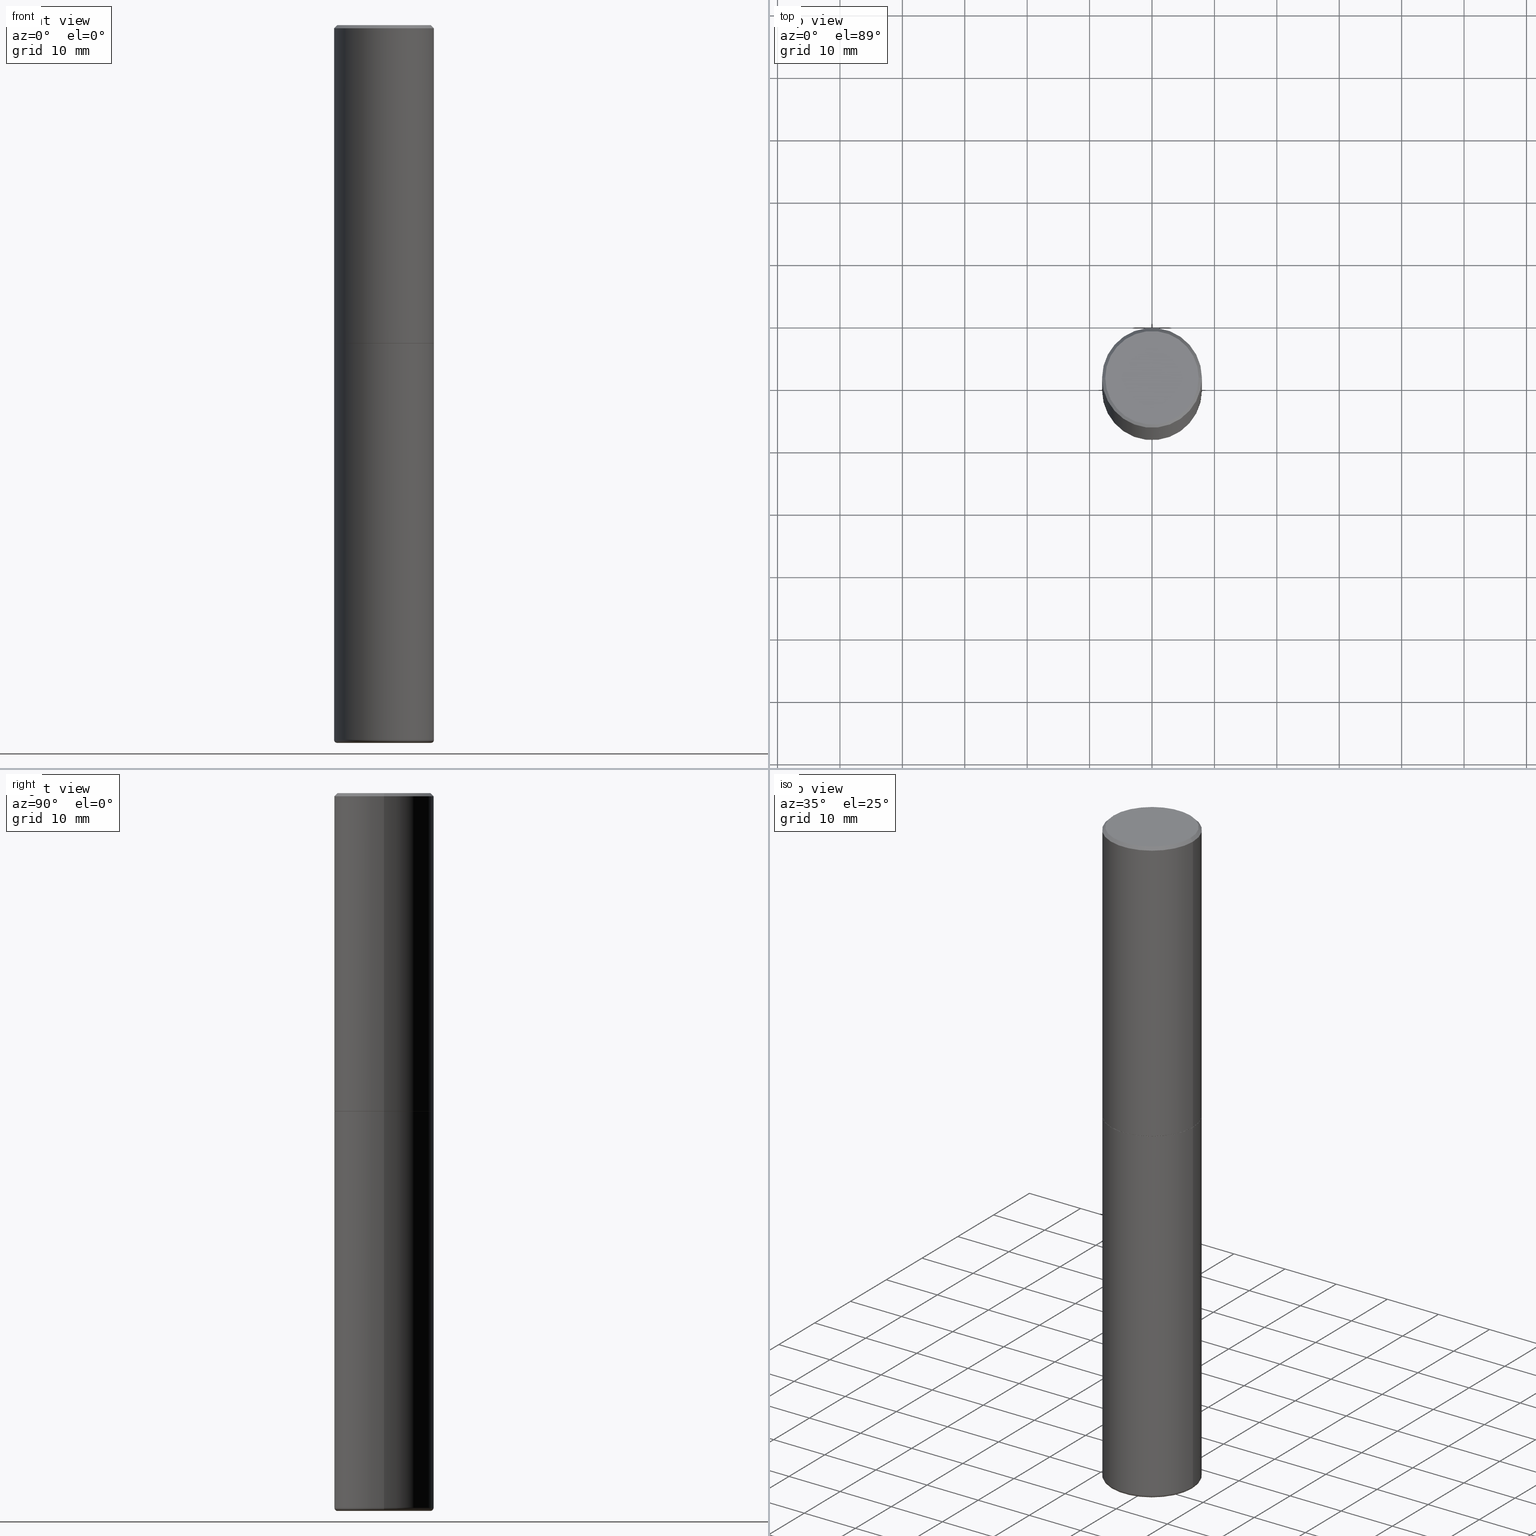
[diagram: canonical four-view strip — front | top / right | iso, engineering-drawing reading convention]
A machine part, canonical four-view strip (front | top / right | iso — engineering-drawing reading convention). The complete STEP part file that produces these views, byte-faithful:
ISO-10303-21;
HEADER;
FILE_DESCRIPTION (( 'STEP AP203' ),
    '1' );
FILE_NAME ('74776.STEP',
    '2024-05-02T19:17:38',
    ( '' ),
    ( '' ),
    'SwSTEP 2.0',
    'SolidWorks 2023',
    '' );
FILE_SCHEMA (( 'CONFIG_CONTROL_DESIGN' ));
ENDSEC;

DATA;
#1 = FACE_OUTER_BOUND ( 'NONE', #267, .T. ) ;
#2 = APPLICATION_PROTOCOL_DEFINITION ( 'international standard', 'config_control_design', 1994, #95 ) ;
#3 = FACE_OUTER_BOUND ( 'NONE', #375, .T. ) ;
#4 = EDGE_CURVE ( 'NONE', #141, #298, #44, .T. ) ;
#5 = DIRECTION ( 'NONE',  ( 1.000000000000000000, -6.982962677686266711E-15, 0.000000000000000000 ) ) ;
#6 = DIRECTION ( 'NONE',  ( -2.445468806185136597E-29, 3.491481338843145583E-15, 1.000000000000000000 ) ) ;
#7 = FACE_OUTER_BOUND ( 'NONE', #270, .T. ) ;
#8 = VERTEX_POINT ( 'NONE', #82 ) ;
#9 = COORDINATED_UNIVERSAL_TIME_OFFSET ( 5, 0, .BEHIND. ) ;
#10 = VERTEX_POINT ( 'NONE', #330 ) ;
#11 = DATE_AND_TIME ( #297, #372 ) ;
#12 = VERTEX_POINT ( 'NONE', #257 ) ;
#13 = AXIS2_PLACEMENT_3D ( 'NONE', #92, #113, #98 ) ;
#14 = EDGE_CURVE ( 'NONE', #414, #141, #396, .T. ) ;
#15 = ORIENTED_EDGE ( 'NONE', *, *, #386, .F. ) ;
#16 = SECURITY_CLASSIFICATION ( '', '', #366 ) ;
#17 = ORIENTED_EDGE ( 'NONE', *, *, #329, .F. ) ;
#18 = DIRECTION ( 'NONE',  ( 1.000000000000000000, -6.982962677686269866E-15, 0.000000000000000000 ) ) ;
#19 = VERTEX_POINT ( 'NONE', #351 ) ;
#20 = DIRECTION ( 'NONE',  ( -1.000000000000000000, 7.105427357600976615E-15, 0.000000000000000000 ) ) ;
#21 = EDGE_CURVE ( 'NONE', #186, #215, #148, .T. ) ;
#22 = EDGE_LOOP ( 'NONE', ( #235, #242, #90, #343 ) ) ;
#23 = AXIS2_PLACEMENT_3D ( 'NONE', #312, #271, #20 ) ;
#24 = AXIS2_PLACEMENT_3D ( 'NONE', #128, #103, #5 ) ;
#25 = DIRECTION ( 'NONE',  ( 1.000000000000000000, -6.982962677686265922E-15, 4.876176775795935232E-29 ) ) ;
#26 = CARTESIAN_POINT ( 'NONE',  ( -0.3149500000000001743, 2.237854346276436774E-15, -1.549218606675783237E-29 ) ) ;
#27 = EDGE_LOOP ( 'NONE', ( #234, #153, #119, #311 ) ) ;
#28 = DIRECTION ( 'NONE',  ( 0.7071067811866199593, -2.468850131083015945E-15, 0.7071067811864750752 ) ) ;
#29 = EDGE_CURVE ( 'NONE', #414, #19, #212, .T. ) ;
#30 = CARTESIAN_POINT ( 'NONE',  ( 4.890937612370289799E-31, -6.982962677686315028E-17, -0.02000000000000006981 ) ) ;
#31 = AXIS2_PLACEMENT_3D ( 'NONE', #315, #282, #319 ) ;
#32 = CYLINDRICAL_SURFACE ( 'NONE', #295, 0.3149500000000001743 ) ;
#33 = DIRECTION ( 'NONE',  ( 1.000000000000000000, -6.982962677686273021E-15, 0.000000000000000000 ) ) ;
#34 = DIRECTION ( 'NONE',  ( 2.438088387897960049E-29, -3.491481338843145188E-15, -1.000000000000000000 ) ) ;
#35 = DIRECTION ( 'NONE',  ( 2.438088387897960049E-29, -3.491481338843145188E-15, -1.000000000000000000 ) ) ;
#36 = EDGE_CURVE ( 'NONE', #150, #412, #185, .T. ) ;
#37 = MECHANICAL_CONTEXT ( 'NONE', #95, 'mechanical' ) ;
#38 = CIRCLE ( 'NONE', #353, 0.3139500000000000068 ) ;
#39 = CC_DESIGN_APPROVAL ( #77, ( #16 ) ) ;
#40 =( NAMED_UNIT ( * ) PLANE_ANGLE_UNIT ( ) SI_UNIT ( $, .RADIAN. ) );
#41 = COORDINATED_UNIVERSAL_TIME_OFFSET ( 5, 0, .BEHIND. ) ;
#42 = EDGE_CURVE ( 'NONE', #60, #12, #52, .T. ) ;
#43 = APPROVAL_DATE_TIME ( #395, #143 ) ;
#44 = CIRCLE ( 'NONE', #327, 0.3149500000000002853 ) ;
#45 = TOROIDAL_SURFACE ( 'NONE', #233, 0.2952500000000000124, 0.01969999999999934998 ) ;
#46 = PERSON_AND_ORGANIZATION ( #316, #157 ) ;
#47 = PERSON_AND_ORGANIZATION_ROLE ( 'design_owner' ) ;
#48 = PRODUCT_DEFINITION_SHAPE ( 'NONE', 'NONE',  #263 ) ;
#49 = CC_DESIGN_PERSON_AND_ORGANIZATION_ASSIGNMENT ( #51, #84, ( #241 ) ) ;
#50 = ORIENTED_EDGE ( 'NONE', *, *, #229, .F. ) ;
#51 = PERSON_AND_ORGANIZATION ( #316, #157 ) ;
#52 = CIRCLE ( 'NONE', #31, 0.3149499999999999522 ) ;
#53 = ORIENTED_EDGE ( 'NONE', *, *, #317, .T. ) ;
#54 = AXIS2_PLACEMENT_3D ( 'NONE', #131, #35, #324 ) ;
#55 = CARTESIAN_POINT ( 'NONE',  ( 0.3149499999999999522, -2.230543471175006661E-15, -0.02000000000000006981 ) ) ;
#56 = EDGE_LOOP ( 'NONE', ( #210, #175, #66, #299 ) ) ;
#57 = CC_DESIGN_DATE_AND_TIME_ASSIGNMENT ( #264, #207, ( #16 ) ) ;
#58 = DIRECTION ( 'NONE',  ( -2.445468806185136597E-29, 3.491481338843145583E-15, 1.000000000000000000 ) ) ;
#59 = PRODUCT ( '74776', '74776', '', ( #37 ) ) ;
#60 = VERTEX_POINT ( 'NONE', #161 ) ;
#61 = MANIFOLD_SOLID_BREP ( 'Body-Move/Copy2[1]', #301 ) ;
#62 = CARTESIAN_POINT ( 'NONE',  ( 0.3149500000000002853, -9.206337994261599363E-15, -2.006899999999999906 ) ) ;
#63 = EDGE_LOOP ( 'NONE', ( #50, #303, #308, #400 ) ) ;
#64 = VECTOR ( 'NONE', #269, 39.37007874015748143 ) ;
#65 = CYLINDRICAL_SURFACE ( 'NONE', #199, 0.3149500000000000077 ) ;
#66 = ORIENTED_EDGE ( 'NONE', *, *, #42, .F. ) ;
#67 = CYLINDRICAL_SURFACE ( 'NONE', #206, 0.3149500000000001743 ) ;
#68 = FACE_OUTER_BOUND ( 'NONE', #115, .T. ) ;
#69 = DIRECTION ( 'NONE',  ( -2.445468806185136597E-29, 3.491481338843145583E-15, 1.000000000000000000 ) ) ;
#70 = EDGE_CURVE ( 'NONE', #19, #414, #38, .T. ) ;
#71 = DIRECTION ( 'NONE',  ( 1.000000000000000000, -6.982962677686260400E-15, 4.883557194083110659E-29 ) ) ;
#72 = DIRECTION ( 'NONE',  ( 1.000000000000000000, 0.000000000000000000, 0.000000000000000000 ) ) ;
#73 = DIRECTION ( 'NONE',  ( -1.000000000000000000, 6.982962677686265922E-15, -4.876176775795935793E-29 ) ) ;
#74 = AXIS2_PLACEMENT_3D ( 'NONE', #99, #416, #18 ) ;
#75 = CYLINDRICAL_SURFACE ( 'NONE', #389, 0.3149500000000000077 ) ;
#76 = CARTESIAN_POINT ( 'NONE',  ( -0.3139500000000000068, -4.779796461344316734E-15, -2.007899999999999796 ) ) ;
#77 = APPROVAL ( #300, 'UNSPECIFIED' ) ;
#78 = ADVANCED_BREP_SHAPE_REPRESENTATION ( '74776', ( #61, #334, #418 ), #373 ) ;
#79 = PERSON_AND_ORGANIZATION_ROLE ( 'creator' ) ;
#80 = ORIENTED_EDGE ( 'NONE', *, *, #260, .T. ) ;
#81 = PERSON_AND_ORGANIZATION_ROLE ( 'creator' ) ;
#82 = CARTESIAN_POINT ( 'NONE',  ( -0.2949499999999997679, 2.094539655171994924E-15, 1.835460370743031619E-16 ) ) ;
#83 = APPROVAL_PERSON_ORGANIZATION ( #401, #370, #87 ) ;
#84 = PERSON_AND_ORGANIZATION_ROLE ( 'design_supplier' ) ;
#85 = ADVANCED_FACE ( 'NONE', ( #3 ), #75, .T. ) ;
#86 = ORIENTED_EDGE ( 'NONE', *, *, #171, .T. ) ;
#87 = APPROVAL_ROLE ( '' ) ;
#88 = ORIENTED_EDGE ( 'NONE', *, *, #198, .F. ) ;
#89 = DIRECTION ( 'NONE',  ( -2.445468806185136877E-29, 3.491481338843145188E-15, 1.000000000000000000 ) ) ;
#90 = ORIENTED_EDGE ( 'NONE', *, *, #108, .T. ) ;
#91 = CIRCLE ( 'NONE', #360, 0.3149500000000000077 ) ;
#92 = CARTESIAN_POINT ( 'NONE',  ( 4.910256815939135870E-29, -7.010545380263151710E-15, -2.007899999999999796 ) ) ;
#93 = ADVANCED_FACE ( 'NONE', ( #163 ), #272, .T. ) ;
#94 = EDGE_LOOP ( 'NONE', ( #321, #117, #390, #80 ) ) ;
#95 = APPLICATION_CONTEXT ( 'configuration controlled 3d designs of mechanical parts and assemblies' ) ;
#96 = LINE ( 'NONE', #413, #123 ) ;
#97 = ORIENTED_EDGE ( 'NONE', *, *, #101, .F. ) ;
#98 = DIRECTION ( 'NONE',  ( 1.000000000000000000, -6.982962677686265922E-15, 4.876176775795935793E-29 ) ) ;
#99 = CARTESIAN_POINT ( 'NONE',  ( 1.102392883140197736E-28, -1.573924872737101586E-14, -4.507900000000000240 ) ) ;
#100 = FACE_OUTER_BOUND ( 'NONE', #261, .T. ) ;
#101 = EDGE_CURVE ( 'NONE', #298, #141, #265, .T. ) ;
#102 = AXIS2_PLACEMENT_3D ( 'NONE', #352, #34, #73 ) ;
#103 = DIRECTION ( 'NONE',  ( -2.445468806185136597E-29, 3.491481338843145583E-15, 1.000000000000000000 ) ) ;
#104 = CARTESIAN_POINT ( 'NONE',  ( 4.910256815939135870E-29, -7.010545380263151710E-15, -2.007899999999999796 ) ) ;
#105 = CARTESIAN_POINT ( 'NONE',  ( 1.107210456688382074E-28, -1.580803090974622074E-14, -4.527599999999998737 ) ) ;
#106 = CARTESIAN_POINT ( 'NONE',  ( -4.488561081641444621E-45, 6.408475632635922878E-31, 1.835460370743176819E-16 ) ) ;
#107 = DATE_AND_TIME ( #133, #409 ) ;
#108 = EDGE_CURVE ( 'NONE', #186, #10, #380, .T. ) ;
#109 = CALENDAR_DATE ( 2024, 2, 5 ) ;
#110 = APPROVAL_STATUS ( 'not_yet_approved' ) ;
#111 = ORIENTED_EDGE ( 'NONE', *, *, #293, .T. ) ;
#112 = DIRECTION ( 'NONE',  ( -2.445468806185136597E-29, 3.491481338843145583E-15, 1.000000000000000000 ) ) ;
#113 = DIRECTION ( 'NONE',  ( -2.438088387897960049E-29, 3.491481338843145188E-15, 1.000000000000000000 ) ) ;
#114 = VECTOR ( 'NONE', #200, 39.37007874015748143 ) ;
#115 = EDGE_LOOP ( 'NONE', ( #188, #305, #97, #88 ) ) ;
#116 = DIRECTION ( 'NONE',  ( -2.445468806185136597E-29, 3.491481338843145583E-15, 1.000000000000000000 ) ) ;
#117 = ORIENTED_EDGE ( 'NONE', *, *, #392, .F. ) ;
#118 = LINE ( 'NONE', #146, #280 ) ;
#119 = ORIENTED_EDGE ( 'NONE', *, *, #184, .F. ) ;
#120 = CC_DESIGN_PERSON_AND_ORGANIZATION_ASSIGNMENT ( #170, #81, ( #263 ) ) ;
#121 = CARTESIAN_POINT ( 'NONE',  ( 4.890937612370289799E-31, -6.982962677686315028E-17, -0.02000000000000006981 ) ) ;
#122 = CIRCLE ( 'NONE', #253, 0.3149500000000000077 ) ;
#123 = VECTOR ( 'NONE', #89, 39.37007874015748143 ) ;
#124 = LINE ( 'NONE', #214, #371 ) ;
#125 =( LENGTH_UNIT ( ) NAMED_UNIT ( * ) SI_UNIT ( $, .METRE. ) );
#126 = DIRECTION ( 'NONE',  ( 1.000000000000000000, -6.982962677686266711E-15, 4.876176775795936353E-29 ) ) ;
#127 = CC_DESIGN_DATE_AND_TIME_ASSIGNMENT ( #11, #134, ( #263 ) ) ;
#128 = CARTESIAN_POINT ( 'NONE',  ( 4.910256815939135870E-29, -7.010545380263151710E-15, -2.007899999999999796 ) ) ;
#129 = DIRECTION ( 'NONE',  ( -2.445468806185136597E-29, 3.491481338843145583E-15, 1.000000000000000000 ) ) ;
#130 = LOCAL_TIME ( 15, 17, 38.00000000000000000, #177 ) ;
#131 = CARTESIAN_POINT ( 'NONE',  ( 1.692275825353211781E-28, -7.429561831938046296E-15, -4.527599999999998737 ) ) ;
#132 = DIRECTION ( 'NONE',  ( 1.000000000000000000, -6.982962677686267499E-15, 0.000000000000000000 ) ) ;
#133 = CALENDAR_DATE ( 2024, 2, 5 ) ;
#134 = DATE_TIME_ROLE ( 'creation_date' ) ;
#135 = CIRCLE ( 'NONE', #23, 0.01969999999999931528 ) ;
#136 = AXIS2_PLACEMENT_3D ( 'NONE', #376, #304, #217 ) ;
#137 = CONICAL_SURFACE ( 'NONE', #24, 0.3139500000000000068, 0.7853981633975507526 ) ;
#138 = PERSON_AND_ORGANIZATION ( #316, #157 ) ;
#139 = ORIENTED_EDGE ( 'NONE', *, *, #386, .T. ) ;
#140 = APPROVAL_ROLE ( '' ) ;
#141 = VERTEX_POINT ( 'NONE', #320 ) ;
#142 = ORIENTED_EDGE ( 'NONE', *, *, #329, .T. ) ;
#143 = APPROVAL ( #333, 'UNSPECIFIED' ) ;
#144 = DIRECTION ( 'NONE',  ( 1.000000000000000000, -6.982962677686266711E-15, 0.000000000000000000 ) ) ;
#145 = ORIENTED_EDGE ( 'NONE', *, *, #346, .F. ) ;
#146 = CARTESIAN_POINT ( 'NONE',  ( 0.3139500000000000068, -9.202846512922754778E-15, -2.007899999999999796 ) ) ;
#147 = DIRECTION ( 'NONE',  ( -0.7071067811866199593, 7.493145998870616062E-15, 0.7071067811864750752 ) ) ;
#148 = CIRCLE ( 'NONE', #417, 0.2952500000000000124 ) ;
#149 = CIRCLE ( 'NONE', #336, 0.2949499999999997679 ) ;
#150 = VERTEX_POINT ( 'NONE', #357 ) ;
#151 = DIRECTION ( 'NONE',  ( -2.445468806185136597E-29, 3.491481338843145583E-15, 1.000000000000000000 ) ) ;
#152 = ADVANCED_FACE ( 'NONE', ( #385 ), #292, .F. ) ;
#153 = ORIENTED_EDGE ( 'NONE', *, *, #178, .T. ) ;
#154 = DESIGN_CONTEXT ( 'detailed design', #218, 'design' ) ;
#155 = DIRECTION ( 'NONE',  ( 2.445468806185136597E-29, -3.491481338843145583E-15, -1.000000000000000000 ) ) ;
#156 = DIRECTION ( 'NONE',  ( -2.445468806185136877E-29, 3.491481338843145188E-15, 1.000000000000000000 ) ) ;
#157 = ORGANIZATION ( 'UNSPECIFIED', 'UNSPECIFIED', '' ) ;
#158 = CARTESIAN_POINT ( 'NONE',  ( 0.3149500000000000077, -9.209829475600440793E-15, -2.007899999999999796 ) ) ;
#159 = CARTESIAN_POINT ( 'NONE',  ( 0.000000000000000000, 0.000000000000000000, 0.000000000000000000 ) ) ;
#160 = ADVANCED_FACE ( 'NONE', ( #7 ), #65, .T. ) ;
#161 = CARTESIAN_POINT ( 'NONE',  ( 0.3149499999999999522, -2.230543471175006661E-15, -0.02000000000000006981 ) ) ;
#162 = DIRECTION ( 'NONE',  ( -2.445468806185136597E-29, 3.491481338843145583E-15, 1.000000000000000000 ) ) ;
#163 = FACE_OUTER_BOUND ( 'NONE', #27, .T. ) ;
#164 = AXIS2_PLACEMENT_3D ( 'NONE', #228, #69, #289 ) ;
#165 = CIRCLE ( 'NONE', #74, 0.3149500000000000077 ) ;
#166 = CARTESIAN_POINT ( 'NONE',  ( 4.907811347132950267E-29, -7.007053898924307914E-15, -2.006899999999999906 ) ) ;
#167 = ADVANCED_FACE ( 'NONE', ( #374 ), #410, .F. ) ;
#168 = DIRECTION ( 'NONE',  ( 2.445468806185136597E-29, -3.491481338843145583E-15, -1.000000000000000000 ) ) ;
#169 = ORIENTED_EDGE ( 'NONE', *, *, #317, .F. ) ;
#170 = PERSON_AND_ORGANIZATION ( #316, #157 ) ;
#171 = EDGE_CURVE ( 'NONE', #332, #8, #205, .T. ) ;
#172 = APPROVAL_PERSON_ORGANIZATION ( #331, #77, #174 ) ;
#173 = ORIENTED_EDGE ( 'NONE', *, *, #70, .F. ) ;
#174 = APPROVAL_ROLE ( '' ) ;
#175 = ORIENTED_EDGE ( 'NONE', *, *, #229, .T. ) ;
#176 = EDGE_LOOP ( 'NONE', ( #173, #339 ) ) ;
#177 = COORDINATED_UNIVERSAL_TIME_OFFSET ( 5, 0, .BEHIND. ) ;
#178 = EDGE_CURVE ( 'NONE', #215, #408, #135, .T. ) ;
#179 = CARTESIAN_POINT ( 'NONE',  ( 0.3149500000000001743, -2.199284095337290660E-15, 1.535751875536930690E-29 ) ) ;
#180 = ORIENTED_EDGE ( 'NONE', *, *, #171, .F. ) ;
#181 = DIRECTION ( 'NONE',  ( 1.000000000000000000, -6.982962677686266711E-15, 4.876176775795936353E-29 ) ) ;
#182 = EDGE_LOOP ( 'NONE', ( #367, #369, #268, #404 ) ) ;
#183 = LINE ( 'NONE', #26, #288 ) ;
#184 = EDGE_CURVE ( 'NONE', #10, #408, #122, .T. ) ;
#185 = CIRCLE ( 'NONE', #402, 0.3149500000000000077 ) ;
#186 = VERTEX_POINT ( 'NONE', #239 ) ;
#187 = FACE_OUTER_BOUND ( 'NONE', #182, .T. ) ;
#188 = ORIENTED_EDGE ( 'NONE', *, *, #70, .T. ) ;
#189 = CARTESIAN_POINT ( 'NONE',  ( 4.890937612370289799E-31, -6.982962677686315028E-17, -0.02000000000000006981 ) ) ;
#190 = PLANE ( 'NONE',  #403 ) ;
#191 = CARTESIAN_POINT ( 'NONE',  ( 4.910256815939135870E-29, -7.010545380263151710E-15, -2.007899999999999796 ) ) ;
#192 = CC_DESIGN_APPROVAL ( #143, ( #241 ) ) ;
#193 = EDGE_CURVE ( 'NONE', #8, #12, #124, .T. ) ;
#194 = CC_DESIGN_APPROVAL ( #370, ( #263 ) ) ;
#195 = DIRECTION ( 'NONE',  ( -2.445468806185136597E-29, 3.491481338843145583E-15, 1.000000000000000000 ) ) ;
#196 = DIRECTION ( 'NONE',  ( 0.000000000000000000, 0.000000000000000000, 1.000000000000000000 ) ) ;
#197 = CARTESIAN_POINT ( 'NONE',  ( 1.102392883140197736E-28, -1.573924872737101586E-14, -4.507900000000000240 ) ) ;
#198 = EDGE_CURVE ( 'NONE', #19, #298, #118, .T. ) ;
#199 = AXIS2_PLACEMENT_3D ( 'NONE', #415, #307, #181 ) ;
#200 = DIRECTION ( 'NONE',  ( -2.445468806185136877E-29, 3.491481338843145188E-15, 1.000000000000000000 ) ) ;
#201 = LOCAL_TIME ( 15, 17, 38.00000000000000000, #236 ) ;
#202 = CC_DESIGN_PERSON_AND_ORGANIZATION_ASSIGNMENT ( #262, #47, ( #59 ) ) ;
#203 = APPROVAL_DATE_TIME ( #326, #370 ) ;
#204 = CALENDAR_DATE ( 2024, 2, 5 ) ;
#205 = CIRCLE ( 'NONE', #136, 0.2949499999999997679 ) ;
#206 = AXIS2_PLACEMENT_3D ( 'NONE', #211, #58, #25 ) ;
#207 = DATE_TIME_ROLE ( 'classification_date' ) ;
#208 = PERSON_AND_ORGANIZATION_ROLE ( 'classification_officer' ) ;
#209 = CC_DESIGN_PERSON_AND_ORGANIZATION_ASSIGNMENT ( #138, #208, ( #16 ) ) ;
#210 = ORIENTED_EDGE ( 'NONE', *, *, #101, .T. ) ;
#211 = CARTESIAN_POINT ( 'NONE',  ( 0.000000000000000000, 0.000000000000000000, 0.000000000000000000 ) ) ;
#212 = CIRCLE ( 'NONE', #164, 0.3139500000000000068 ) ;
#213 = AXIS2_PLACEMENT_3D ( 'NONE', #189, #379, #344 ) ;
#214 = CARTESIAN_POINT ( 'NONE',  ( -0.3149499999999999522, 2.129454468560426178E-15, -0.02000000000000006981 ) ) ;
#215 = VERTEX_POINT ( 'NONE', #313 ) ;
#216 = ADVANCED_FACE ( 'NONE', ( #187 ), #237, .T. ) ;
#217 = DIRECTION ( 'NONE',  ( 1.000000000000000000, -6.982962677686265922E-15, 4.874125435057325556E-29 ) ) ;
#218 = APPLICATION_CONTEXT ( 'configuration controlled 3d designs of mechanical parts and assemblies' ) ;
#219 = CARTESIAN_POINT ( 'NONE',  ( 4.910256815939135870E-29, -7.010545380263151710E-15, -2.007899999999999796 ) ) ;
#220 = AXIS2_PLACEMENT_3D ( 'NONE', #30, #168, #291 ) ;
#221 = ORIENTED_EDGE ( 'NONE', *, *, #42, .T. ) ;
#222 = CARTESIAN_POINT ( 'NONE',  ( 1.102392883140197736E-28, -1.573924872737101586E-14, -4.507900000000000240 ) ) ;
#223 = DIRECTION ( 'NONE',  ( -2.445468806185136597E-29, 3.491481338843145583E-15, 1.000000000000000000 ) ) ;
#224 = EDGE_CURVE ( 'NONE', #332, #60, #342, .T. ) ;
#225 =( CONVERSION_BASED_UNIT ( 'INCH', #355 ) LENGTH_UNIT ( ) NAMED_UNIT ( #384 ) );
#226 = AXIS2_PLACEMENT_3D ( 'NONE', #121, #155, #247 ) ;
#227 = DIRECTION ( 'NONE',  ( -2.445468806185136597E-29, 3.491481338843145583E-15, 1.000000000000000000 ) ) ;
#228 = CARTESIAN_POINT ( 'NONE',  ( 4.910256815939135870E-29, -7.010545380263151710E-15, -2.007899999999999796 ) ) ;
#229 = EDGE_CURVE ( 'NONE', #141, #12, #183, .T. ) ;
#230 =( NAMED_UNIT ( * ) SI_UNIT ( $, .STERADIAN. ) SOLID_ANGLE_UNIT ( ) );
#231 = CARTESIAN_POINT ( 'NONE',  ( -0.3139500000000000068, -4.774498006996093543E-15, -2.007899999999999796 ) ) ;
#232 = APPROVAL_DATE_TIME ( #107, #77 ) ;
#233 = AXIS2_PLACEMENT_3D ( 'NONE', #222, #151, #407 ) ;
#234 = ORIENTED_EDGE ( 'NONE', *, *, #21, .T. ) ;
#235 = ORIENTED_EDGE ( 'NONE', *, *, #178, .F. ) ;
#236 = COORDINATED_UNIVERSAL_TIME_OFFSET ( 5, 0, .BEHIND. ) ;
#237 = CONICAL_SURFACE ( 'NONE', #259, 0.3139500000000000068, 0.7853981633975507526 ) ;
#238 = ORIENTED_EDGE ( 'NONE', *, *, #184, .T. ) ;
#239 = CARTESIAN_POINT ( 'NONE',  ( 0.2952500000000000124, -1.786975064033309297E-14, -4.527599999999998737 ) ) ;
#240 = AXIS2_PLACEMENT_3D ( 'NONE', #197, #252, #71 ) ;
#241 = PRODUCT_DEFINITION_FORMATION_WITH_SPECIFIED_SOURCE ( 'ANY', '', #59, .NOT_KNOWN. ) ;
#242 = ORIENTED_EDGE ( 'NONE', *, *, #346, .T. ) ;
#243 = UNCERTAINTY_MEASURE_WITH_UNIT (LENGTH_MEASURE( 1.000000000000000082E-05 ), #225, 'distance_accuracy_value', 'NONE');
#244 = FACE_OUTER_BOUND ( 'NONE', #22, .T. ) ;
#245 = ORIENTED_EDGE ( 'NONE', *, *, #224, .T. ) ;
#246 = DIRECTION ( 'NONE',  ( -2.445468806185136597E-29, 3.491481338843145583E-15, 1.000000000000000000 ) ) ;
#247 = DIRECTION ( 'NONE',  ( -1.000000000000000000, 6.982962677686266711E-15, 0.000000000000000000 ) ) ;
#248 = CARTESIAN_POINT ( 'NONE',  ( -0.3149500000000000077, 2.237854346276435590E-15, -1.549218606675782676E-29 ) ) ;
#249 = ADVANCED_FACE ( 'NONE', ( #275 ), #398, .T. ) ;
#250 = LINE ( 'NONE', #248, #114 ) ;
#251 = CARTESIAN_POINT ( 'NONE',  ( 2.059624841783562486E-15, 0.2949499999999997679, -9.380394023546260134E-16 ) ) ;
#252 = DIRECTION ( 'NONE',  ( -2.445468806185136597E-29, 3.491481338843145583E-15, 1.000000000000000000 ) ) ;
#253 = AXIS2_PLACEMENT_3D ( 'NONE', #279, #246, #378 ) ;
#254 = EDGE_CURVE ( 'NONE', #298, #60, #348, .T. ) ;
#255 = CARTESIAN_POINT ( 'NONE',  ( -0.3149499999999996747, -1.350139438109458461E-14, -4.507900000000000240 ) ) ;
#256 = DIRECTION ( 'NONE',  ( -6.982962677686266711E-15, -1.000000000000000000, 3.491481338843145583E-15 ) ) ;
#257 = CARTESIAN_POINT ( 'NONE',  ( -0.3149499999999999522, 2.129454468560426178E-15, -0.02000000000000006981 ) ) ;
#258 = COORDINATED_UNIVERSAL_TIME_OFFSET ( 5, 0, .BEHIND. ) ;
#259 = AXIS2_PLACEMENT_3D ( 'NONE', #219, #116, #144 ) ;
#260 = EDGE_CURVE ( 'NONE', #12, #60, #323, .T. ) ;
#261 = EDGE_LOOP ( 'NONE', ( #274, #86 ) ) ;
#262 = PERSON_AND_ORGANIZATION ( #316, #157 ) ;
#263 = PRODUCT_DEFINITION ( 'UNKNOWN', '', #241, #154 ) ;
#264 = DATE_AND_TIME ( #294, #354 ) ;
#265 = CIRCLE ( 'NONE', #335, 0.3149500000000002853 ) ;
#266 = CARTESIAN_POINT ( 'NONE',  ( 4.907811347132950267E-29, -7.007053898924307914E-15, -2.006899999999999906 ) ) ;
#267 = EDGE_LOOP ( 'NONE', ( #180, #245, #221, #341 ) ) ;
#268 = ORIENTED_EDGE ( 'NONE', *, *, #198, .T. ) ;
#269 = DIRECTION ( 'NONE',  ( 0.7071067811865465735, -7.319954787623252890E-15, -0.7071067811865484609 ) ) ;
#270 = EDGE_LOOP ( 'NONE', ( #15, #111, #53, #362 ) ) ;
#271 = DIRECTION ( 'NONE',  ( 7.105427357601001859E-15, 1.000000000000000000, -3.491481338843145583E-15 ) ) ;
#272 = TOROIDAL_SURFACE ( 'NONE', #240, 0.2952500000000000124, 0.01969999999999934998 ) ;
#273 = CIRCLE ( 'NONE', #347, 0.2952500000000000124 ) ;
#274 = ORIENTED_EDGE ( 'NONE', *, *, #392, .T. ) ;
#275 = FACE_OUTER_BOUND ( 'NONE', #94, .T. ) ;
#276 = EDGE_LOOP ( 'NONE', ( #364, #145 ) ) ;
#277 = DIRECTION ( 'NONE',  ( -2.445468806185136877E-29, 3.491481338843145188E-15, 1.000000000000000000 ) ) ;
#278 = PRODUCT_RELATED_PRODUCT_CATEGORY ( 'detail', '', ( #59 ) ) ;
#279 = CARTESIAN_POINT ( 'NONE',  ( 1.102392883140197736E-28, -1.573924872737101586E-14, -4.507900000000000240 ) ) ;
#280 = VECTOR ( 'NONE', #28, 39.37007874015748143 ) ;
#281 = PLANE ( 'NONE',  #54 ) ;
#282 = DIRECTION ( 'NONE',  ( -2.445468806185136597E-29, 3.491481338843145583E-15, 1.000000000000000000 ) ) ;
#283 = CARTESIAN_POINT ( 'NONE',  ( 0.2952500000000000124, -1.780096845795788810E-14, -4.507900000000000240 ) ) ;
#284 = FACE_OUTER_BOUND ( 'NONE', #276, .T. ) ;
#285 = DIRECTION ( 'NONE',  ( -2.445468806185136597E-29, 3.491481338843145583E-15, 1.000000000000000000 ) ) ;
#286 = DIRECTION ( 'NONE',  ( 1.000000000000000000, -6.982962677686263555E-15, 0.000000000000000000 ) ) ;
#287 = DIRECTION ( 'NONE',  ( 1.000000000000000000, -6.982962677686266711E-15, 0.000000000000000000 ) ) ;
#288 = VECTOR ( 'NONE', #156, 39.37007874015748143 ) ;
#289 = DIRECTION ( 'NONE',  ( 1.000000000000000000, -6.982962677686266711E-15, 0.000000000000000000 ) ) ;
#290 = DIRECTION ( 'NONE',  ( -2.445468806185136597E-29, 3.491481338843145583E-15, 1.000000000000000000 ) ) ;
#291 = DIRECTION ( 'NONE',  ( -1.000000000000000000, 6.982962677686266711E-15, 0.000000000000000000 ) ) ;
#292 = PLANE ( 'NONE',  #102 ) ;
#293 = EDGE_CURVE ( 'NONE', #408, #10, #165, .T. ) ;
#294 = CALENDAR_DATE ( 2024, 2, 5 ) ;
#295 = AXIS2_PLACEMENT_3D ( 'NONE', #159, #393, #383 ) ;
#296 = PERSON_AND_ORGANIZATION ( #316, #157 ) ;
#297 = CALENDAR_DATE ( 2024, 2, 5 ) ;
#298 = VERTEX_POINT ( 'NONE', #62 ) ;
#299 = ORIENTED_EDGE ( 'NONE', *, *, #254, .F. ) ;
#300 = APPROVAL_STATUS ( 'not_yet_approved' ) ;
#301 = CLOSED_SHELL ( 'NONE', ( #85, #93, #152, #160, #306, #399 ) ) ;
#302 = VECTOR ( 'NONE', #277, 39.37007874015748143 ) ;
#303 = ORIENTED_EDGE ( 'NONE', *, *, #4, .T. ) ;
#304 = DIRECTION ( 'NONE',  ( -2.445468806185136597E-29, 3.491481338843145583E-15, 1.000000000000000000 ) ) ;
#305 = ORIENTED_EDGE ( 'NONE', *, *, #14, .T. ) ;
#306 = ADVANCED_FACE ( 'NONE', ( #244 ), #45, .T. ) ;
#307 = DIRECTION ( 'NONE',  ( -2.445468806185136597E-29, 3.491481338843145583E-15, 1.000000000000000000 ) ) ;
#308 = ORIENTED_EDGE ( 'NONE', *, *, #254, .T. ) ;
#309 = DIRECTION ( 'NONE',  ( -0.7071067811865465735, 2.468850131082246805E-15, -0.7071067811865484609 ) ) ;
#310 = APPROVAL_PERSON_ORGANIZATION ( #46, #143, #140 ) ;
#311 = ORIENTED_EDGE ( 'NONE', *, *, #108, .F. ) ;
#312 = CARTESIAN_POINT ( 'NONE',  ( -0.2952500000000000124, -1.364137130003932155E-14, -4.507900000000000240 ) ) ;
#313 = CARTESIAN_POINT ( 'NONE',  ( -0.2952500000000000124, -1.360577393175455947E-14, -4.527599999999998737 ) ) ;
#314 = DIRECTION ( 'NONE',  ( 2.438088387897960049E-29, -3.491481338843145188E-15, -1.000000000000000000 ) ) ;
#315 = CARTESIAN_POINT ( 'NONE',  ( 4.890937612370289799E-31, -6.982962677686315028E-17, -0.02000000000000006981 ) ) ;
#316 = PERSON ( 'UNSPECIFIED', 'UNSPECIFIED', 'UNSPECIFIED', ('UNSPECIFIED'), ('UNSPECIFIED'), ('UNSPECIFIED') ) ;
#317 = EDGE_CURVE ( 'NONE', #10, #412, #96, .T. ) ;
#318 = CARTESIAN_POINT ( 'NONE',  ( 0.2949499999999997679, -2.127023677808858891E-15, 1.835460370743323251E-16 ) ) ;
#319 = DIRECTION ( 'NONE',  ( 1.000000000000000000, -6.982962677686266711E-15, 0.000000000000000000 ) ) ;
#320 = CARTESIAN_POINT ( 'NONE',  ( -0.3149500000000002853, -1.300587416574145677E-15, -2.006899999999999906 ) ) ;
#321 = ORIENTED_EDGE ( 'NONE', *, *, #224, .F. ) ;
#322 = FACE_OUTER_BOUND ( 'NONE', #56, .T. ) ;
#323 = CIRCLE ( 'NONE', #213, 0.3149499999999999522 ) ;
#324 = DIRECTION ( 'NONE',  ( -1.000000000000000000, 6.982962677686265922E-15, -4.876176775795935793E-29 ) ) ;
#325 = ADVANCED_FACE ( 'NONE', ( #340 ), #67, .T. ) ;
#326 = DATE_AND_TIME ( #204, #201 ) ;
#327 = AXIS2_PLACEMENT_3D ( 'NONE', #266, #112, #361 ) ;
#328 = SHAPE_DEFINITION_REPRESENTATION ( #48, #78 ) ;
#329 = EDGE_CURVE ( 'NONE', #412, #150, #91, .T. ) ;
#330 = CARTESIAN_POINT ( 'NONE',  ( 0.3149499999999996747, -1.793853282270830731E-14, -4.507900000000000240 ) ) ;
#331 = PERSON_AND_ORGANIZATION ( #316, #157 ) ;
#332 = VERTEX_POINT ( 'NONE', #318 ) ;
#333 = APPROVAL_STATUS ( 'not_yet_approved' ) ;
#334 = MANIFOLD_SOLID_BREP ( 'Body-Move/Copy2[2]', #359 ) ;
#335 = AXIS2_PLACEMENT_3D ( 'NONE', #166, #290, #132 ) ;
#336 = AXIS2_PLACEMENT_3D ( 'NONE', #106, #223, #382 ) ;
#337 = CARTESIAN_POINT ( 'NONE',  ( 4.910256815939135870E-29, -7.010545380263151710E-15, -2.007899999999999796 ) ) ;
#338 = CC_DESIGN_PERSON_AND_ORGANIZATION_ASSIGNMENT ( #296, #79, ( #241 ) ) ;
#339 = ORIENTED_EDGE ( 'NONE', *, *, #29, .F. ) ;
#340 = FACE_OUTER_BOUND ( 'NONE', #63, .T. ) ;
#341 = ORIENTED_EDGE ( 'NONE', *, *, #193, .F. ) ;
#342 = LINE ( 'NONE', #55, #64 ) ;
#343 = ORIENTED_EDGE ( 'NONE', *, *, #293, .F. ) ;
#344 = DIRECTION ( 'NONE',  ( 1.000000000000000000, -6.982962677686266711E-15, 0.000000000000000000 ) ) ;
#345 = VECTOR ( 'NONE', #147, 39.37007874015748143 ) ;
#346 = EDGE_CURVE ( 'NONE', #215, #186, #273, .T. ) ;
#347 = AXIS2_PLACEMENT_3D ( 'NONE', #105, #6, #350 ) ;
#348 = LINE ( 'NONE', #179, #302 ) ;
#349 = CARTESIAN_POINT ( 'NONE',  ( 1.107210456688382074E-28, -1.580803090974622074E-14, -4.527599999999998737 ) ) ;
#350 = DIRECTION ( 'NONE',  ( 1.000000000000000000, -6.982962677686273021E-15, 0.000000000000000000 ) ) ;
#351 = CARTESIAN_POINT ( 'NONE',  ( 0.3139500000000000068, -9.202846512922754778E-15, -2.007899999999999796 ) ) ;
#352 = CARTESIAN_POINT ( 'NONE',  ( 4.910256815939135870E-29, -7.010545380263151710E-15, -2.007899999999999796 ) ) ;
#353 = AXIS2_PLACEMENT_3D ( 'NONE', #104, #162, #287 ) ;
#354 = LOCAL_TIME ( 15, 17, 38.00000000000000000, #41 ) ;
#355 = LENGTH_MEASURE_WITH_UNIT ( LENGTH_MEASURE( 0.02539999999999999897 ), #125 );
#356 = CARTESIAN_POINT ( 'NONE',  ( 0.000000000000000000, 0.000000000000000000, 0.000000000000000000 ) ) ;
#357 = CARTESIAN_POINT ( 'NONE',  ( -0.3149500000000000077, -9.137042707540648986E-15, -2.007899999999999796 ) ) ;
#358 = ADVANCED_FACE ( 'NONE', ( #1 ), #381, .T. ) ;
#359 = CLOSED_SHELL ( 'NONE', ( #405, #363, #358, #249, #325, #216, #167, #411 ) ) ;
#360 = AXIS2_PLACEMENT_3D ( 'NONE', #337, #227, #286 ) ;
#361 = DIRECTION ( 'NONE',  ( 1.000000000000000000, -6.982962677686267499E-15, 0.000000000000000000 ) ) ;
#362 = ORIENTED_EDGE ( 'NONE', *, *, #36, .F. ) ;
#363 = ADVANCED_FACE ( 'NONE', ( #322 ), #32, .T. ) ;
#364 = ORIENTED_EDGE ( 'NONE', *, *, #21, .F. ) ;
#365 = CC_DESIGN_SECURITY_CLASSIFICATION ( #16, ( #241 ) ) ;
#366 = SECURITY_CLASSIFICATION_LEVEL ( 'unclassified' ) ;
#367 = ORIENTED_EDGE ( 'NONE', *, *, #14, .F. ) ;
#368 = APPLICATION_PROTOCOL_DEFINITION ( 'international standard', 'config_control_design', 1994, #218 ) ;
#369 = ORIENTED_EDGE ( 'NONE', *, *, #29, .T. ) ;
#370 = APPROVAL ( #110, 'UNSPECIFIED' ) ;
#371 = VECTOR ( 'NONE', #309, 39.37007874015748143 ) ;
#372 = LOCAL_TIME ( 15, 17, 38.00000000000000000, #258 ) ;
#373 =( GEOMETRIC_REPRESENTATION_CONTEXT ( 3 ) GLOBAL_UNCERTAINTY_ASSIGNED_CONTEXT ( ( #243 ) ) GLOBAL_UNIT_ASSIGNED_CONTEXT ( ( #225, #40, #230 ) ) REPRESENTATION_CONTEXT ( 'NONE', 'WORKASPACE' ) );
#374 = FACE_OUTER_BOUND ( 'NONE', #176, .T. ) ;
#375 = EDGE_LOOP ( 'NONE', ( #238, #139, #17, #169 ) ) ;
#376 = CARTESIAN_POINT ( 'NONE',  ( -4.488561081641444621E-45, 6.408475632635922878E-31, 1.835460370743176819E-16 ) ) ;
#377 = EDGE_LOOP ( 'NONE', ( #142, #406 ) ) ;
#378 = DIRECTION ( 'NONE',  ( 1.000000000000000000, -6.982962677686269866E-15, 0.000000000000000000 ) ) ;
#379 = DIRECTION ( 'NONE',  ( -2.445468806185136597E-29, 3.491481338843145583E-15, 1.000000000000000000 ) ) ;
#380 = CIRCLE ( 'NONE', #397, 0.01969999999999931528 ) ;
#381 = CONICAL_SURFACE ( 'NONE', #220, 0.3149499999999999522, 0.7853981633974469467 ) ;
#382 = DIRECTION ( 'NONE',  ( 1.000000000000000000, -6.982962677686265922E-15, 4.874125435057325556E-29 ) ) ;
#383 = DIRECTION ( 'NONE',  ( 1.000000000000000000, -6.982962677686265922E-15, 4.876176775795935232E-29 ) ) ;
#384 = DIMENSIONAL_EXPONENTS ( 1.000000000000000000, 0.000000000000000000, 0.000000000000000000, 0.000000000000000000, 0.000000000000000000, 0.000000000000000000, 0.000000000000000000 ) ;
#385 = FACE_OUTER_BOUND ( 'NONE', #377, .T. ) ;
#386 = EDGE_CURVE ( 'NONE', #408, #150, #250, .T. ) ;
#387 = DIRECTION ( 'NONE',  ( -1.000000000000000000, 6.982962677686265922E-15, -4.876176775795935793E-29 ) ) ;
#388 = DIRECTION ( 'NONE',  ( 1.000000000000000000, -6.982962677686263555E-15, 0.000000000000000000 ) ) ;
#389 = AXIS2_PLACEMENT_3D ( 'NONE', #356, #129, #126 ) ;
#390 = ORIENTED_EDGE ( 'NONE', *, *, #193, .T. ) ;
#391 = CARTESIAN_POINT ( 'NONE',  ( 0.000000000000000000, 0.000000000000000000, 0.000000000000000000 ) ) ;
#392 = EDGE_CURVE ( 'NONE', #8, #332, #149, .T. ) ;
#393 = DIRECTION ( 'NONE',  ( -2.445468806185136597E-29, 3.491481338843145583E-15, 1.000000000000000000 ) ) ;
#394 = DIRECTION ( 'NONE',  ( 1.000000000000000000, -6.982962677686373207E-15, 0.000000000000000000 ) ) ;
#395 = DATE_AND_TIME ( #109, #130 ) ;
#396 = LINE ( 'NONE', #76, #345 ) ;
#397 = AXIS2_PLACEMENT_3D ( 'NONE', #283, #256, #394 ) ;
#398 = CONICAL_SURFACE ( 'NONE', #226, 0.3149499999999999522, 0.7853981633974469467 ) ;
#399 = ADVANCED_FACE ( 'NONE', ( #284 ), #281, .T. ) ;
#400 = ORIENTED_EDGE ( 'NONE', *, *, #260, .F. ) ;
#401 = PERSON_AND_ORGANIZATION ( #316, #157 ) ;
#402 = AXIS2_PLACEMENT_3D ( 'NONE', #191, #285, #388 ) ;
#403 = AXIS2_PLACEMENT_3D ( 'NONE', #251, #314, #387 ) ;
#404 = ORIENTED_EDGE ( 'NONE', *, *, #4, .F. ) ;
#405 = ADVANCED_FACE ( 'NONE', ( #68 ), #137, .T. ) ;
#406 = ORIENTED_EDGE ( 'NONE', *, *, #36, .T. ) ;
#407 = DIRECTION ( 'NONE',  ( 1.000000000000000000, -6.982962677686260400E-15, 4.883557194083110659E-29 ) ) ;
#408 = VERTEX_POINT ( 'NONE', #255 ) ;
#409 = LOCAL_TIME ( 15, 17, 38.00000000000000000, #9 ) ;
#410 = PLANE ( 'NONE',  #13 ) ;
#411 = ADVANCED_FACE ( 'NONE', ( #100 ), #190, .F. ) ;
#412 = VERTEX_POINT ( 'NONE', #158 ) ;
#413 = CARTESIAN_POINT ( 'NONE',  ( 0.3149500000000000077, -2.199284095337289871E-15, 1.535751875536930130E-29 ) ) ;
#414 = VERTEX_POINT ( 'NONE', #231 ) ;
#415 = CARTESIAN_POINT ( 'NONE',  ( 0.000000000000000000, 0.000000000000000000, 0.000000000000000000 ) ) ;
#416 = DIRECTION ( 'NONE',  ( -2.445468806185136597E-29, 3.491481338843145583E-15, 1.000000000000000000 ) ) ;
#417 = AXIS2_PLACEMENT_3D ( 'NONE', #349, #195, #33 ) ;
#418 = AXIS2_PLACEMENT_3D ( 'NONE', #391, #196, #72 ) ;
ENDSEC;
END-ISO-10303-21;
